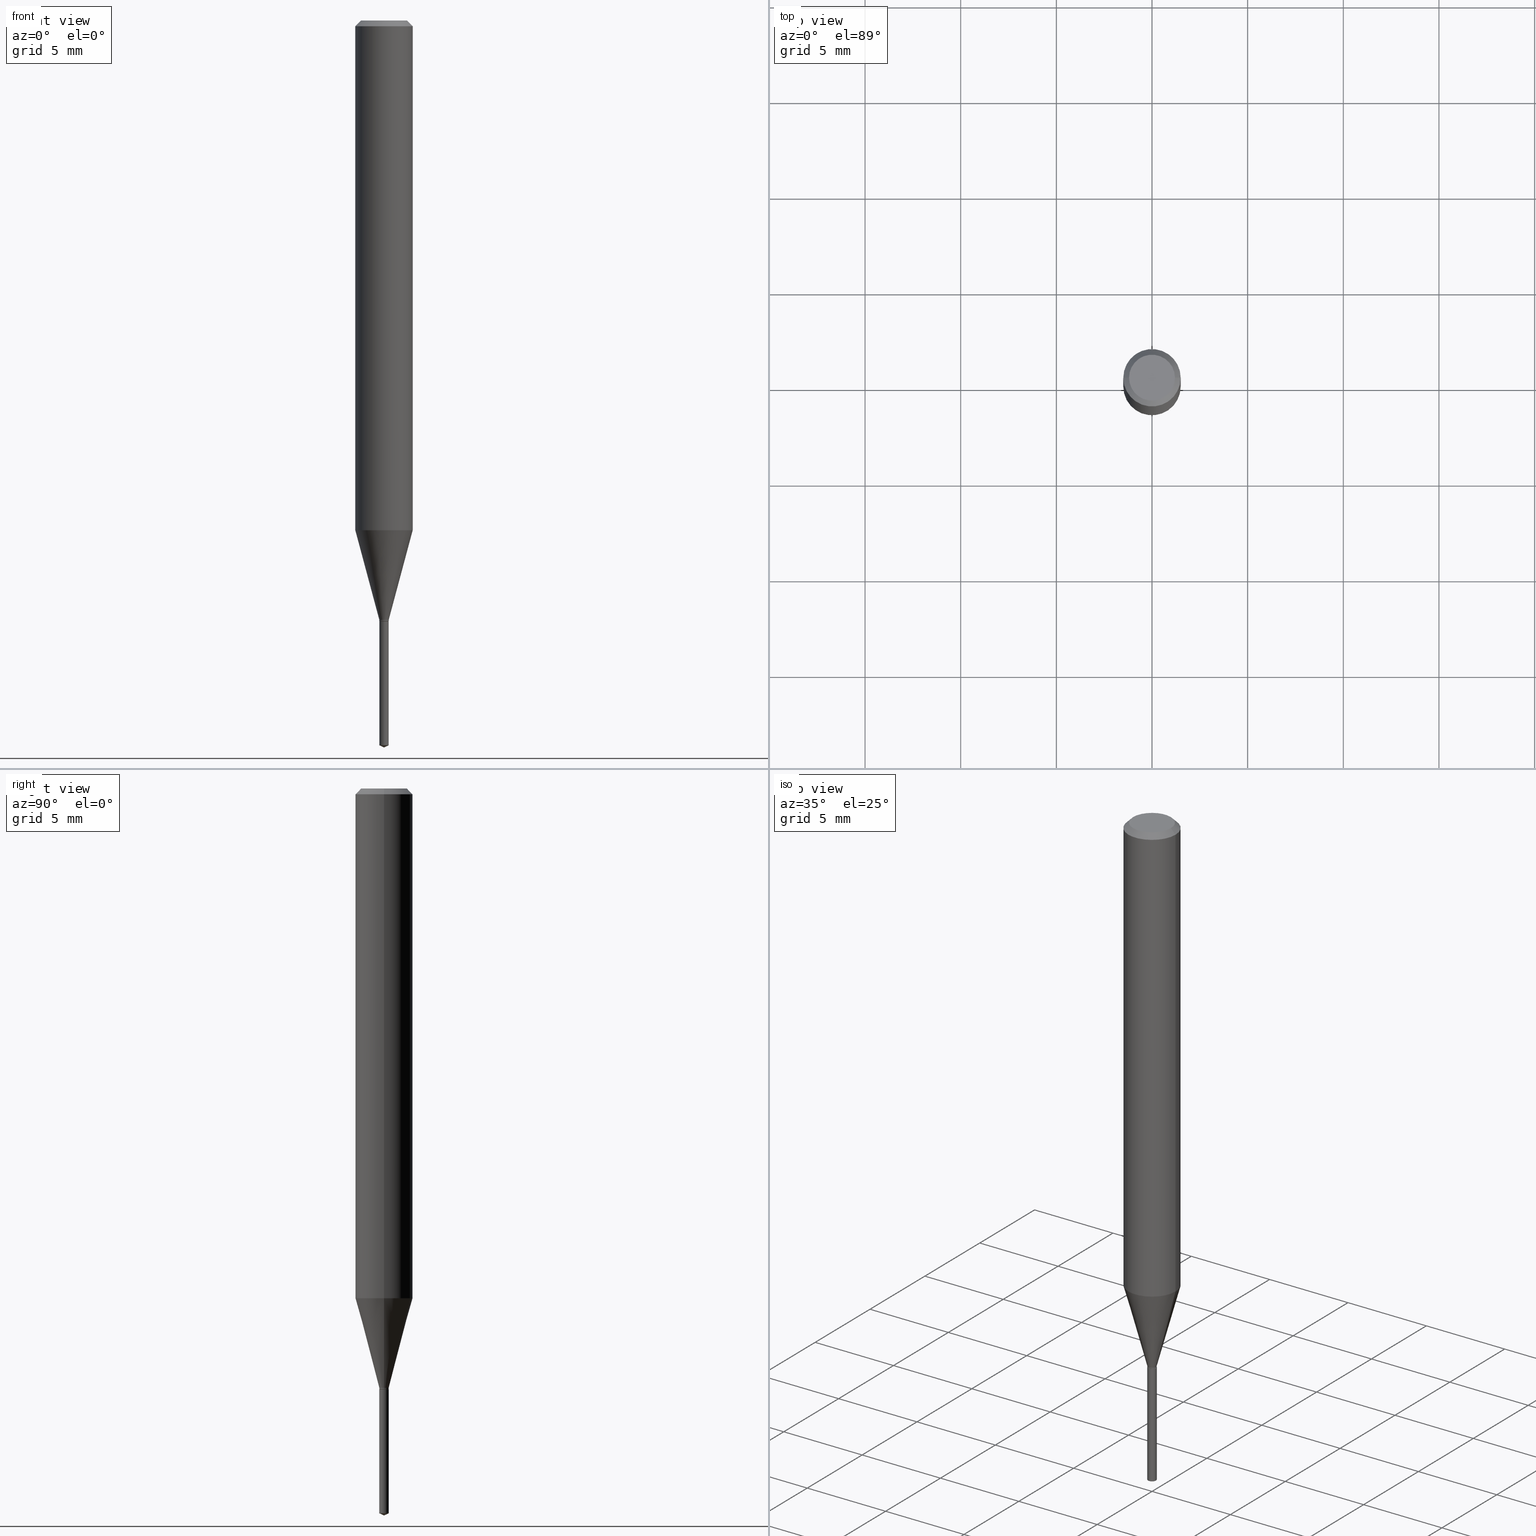
[diagram: canonical four-view strip — front | top / right | iso, engineering-drawing reading convention]
A machine part, canonical four-view strip (front | top / right | iso — engineering-drawing reading convention). The complete STEP part file that produces these views, byte-faithful:
ISO-10303-21;
HEADER;
FILE_DESCRIPTION (( 'STEP AP203' ),
    '1' );
FILE_NAME ('08273.STEP',
    '2024-04-24T14:02:32',
    ( '' ),
    ( '' ),
    'SwSTEP 2.0',
    'SolidWorks 2023',
    '' );
FILE_SCHEMA (( 'CONFIG_CONTROL_DESIGN' ));
ENDSEC;

DATA;
#1 = VERTEX_POINT ( 'NONE', #292 ) ;
#2 = CARTESIAN_POINT ( 'NONE',  ( 0.000000000000000000, 0.000000000000000000, 0.000000000000000000 ) ) ;
#3 = ORIENTED_EDGE ( 'NONE', *, *, #72, .F. ) ;
#4 = DIRECTION ( 'NONE',  ( -2.442788307079794989E-29, 3.495319966126529436E-15, 1.000000000000000000 ) ) ;
#5 = ORIENTED_EDGE ( 'NONE', *, *, #446, .T. ) ;
#6 = EDGE_CURVE ( 'NONE', #156, #190, #238, .T. ) ;
#7 = CARTESIAN_POINT ( 'NONE',  ( -9.251479850800149512E-28, 1.323864197820345943E-13, 37.87397874015748300 ) ) ;
#8 = ORIENTED_EDGE ( 'NONE', *, *, #35, .F. ) ;
#9 = DIRECTION ( 'NONE',  ( 1.000000000000000000, -6.982962677686287221E-15, 0.000000000000000000 ) ) ;
#10 = DIRECTION ( 'NONE',  ( -2.445468806185136597E-29, 3.491481338843145583E-15, 1.000000000000000000 ) ) ;
#11 = CONICAL_SURFACE ( 'NONE', #186, 0.05904999999999999832, 0.7853981633974452814 ) ;
#12 = CARTESIAN_POINT ( 'NONE',  ( 0.05904999999999999832, -4.463468013801466955E-16, -0.01181000000000007044 ) ) ;
#13 = AXIS2_PLACEMENT_3D ( 'NONE', #369, #183, #191 ) ;
#14 = DIRECTION ( 'NONE',  ( 1.000000000000000000, -6.982962677686237523E-15, 0.000000000000000000 ) ) ;
#15 = CARTESIAN_POINT ( 'NONE',  ( -0.05904999999999999832, -1.432387725473137872E-15, -0.01181000000000007044 ) ) ;
#16 = DIRECTION ( 'NONE',  ( 1.000000000000000000, 0.000000000000000000, 0.000000000000000000 ) ) ;
#17 = APPROVAL_STATUS ( 'not_yet_approved' ) ;
#18 = AXIS2_PLACEMENT_3D ( 'NONE', #322, #443, #178 ) ;
#19 = AXIS2_PLACEMENT_3D ( 'NONE', #90, #461, #422 ) ;
#20 = ADVANCED_FACE ( 'NONE', ( #439 ), #280, .T. ) ;
#21 = DATE_TIME_ROLE ( 'creation_date' ) ;
#22 = LINE ( 'NONE', #48, #232 ) ;
#23 = FACE_OUTER_BOUND ( 'NONE', #81, .T. ) ;
#24 = CARTESIAN_POINT ( 'NONE',  ( 8.265746106709734507E-48, -1.180129479067563789E-33, -3.380025165646692144E-19 ) ) ;
#25 = DIRECTION ( 'NONE',  ( 1.000000000000000000, -6.982962677686265133E-15, 0.000000000000000000 ) ) ;
#26 = EDGE_CURVE ( 'NONE', #109, #225, #207, .T. ) ;
#27 = VECTOR ( 'NONE', #128, 39.37007874015748143 ) ;
#28 = AXIS2_PLACEMENT_3D ( 'NONE', #390, #50, #200 ) ;
#29 = DIRECTION ( 'NONE',  ( 1.000000000000000000, -6.982962677686287221E-15, 0.000000000000000000 ) ) ;
#30 = PERSON ( 'UNSPECIFIED', 'UNSPECIFIED', 'UNSPECIFIED', ('UNSPECIFIED'), ('UNSPECIFIED'), ('UNSPECIFIED') ) ;
#31 = DIRECTION ( 'NONE',  ( -2.445468806185136597E-29, 3.491481338843145583E-15, 1.000000000000000000 ) ) ;
#32 = CYLINDRICAL_SURFACE ( 'NONE', #449, 0.009650000000000000591 ) ;
#33 = AXIS2_PLACEMENT_3D ( 'NONE', #51, #249, #199 ) ;
#34 = ORIENTED_EDGE ( 'NONE', *, *, #102, .T. ) ;
#35 = EDGE_CURVE ( 'NONE', #215, #74, #134, .T. ) ;
#36 = DIRECTION ( 'NONE',  ( 1.000000000000000000, -6.982962677686265133E-15, 4.876176775795935232E-29 ) ) ;
#37 = ORIENTED_EDGE ( 'NONE', *, *, #276, .T. ) ;
#38 = DIRECTION ( 'NONE',  ( -6.982962677686265133E-15, -1.000000000000000000, 0.000000000000000000 ) ) ;
#39 = ORIENTED_EDGE ( 'NONE', *, *, #490, .T. ) ;
#40 = DIRECTION ( 'NONE',  ( 1.000000000000000000, -6.982962677686232001E-15, 0.000000000000000000 ) ) ;
#41 = ORIENTED_EDGE ( 'NONE', *, *, #252, .T. ) ;
#42 = CC_DESIGN_APPROVAL ( #417, ( #333 ) ) ;
#43 = FACE_OUTER_BOUND ( 'NONE', #260, .T. ) ;
#44 = CC_DESIGN_SECURITY_CLASSIFICATION ( #242, ( #400 ) ) ;
#45 = ORIENTED_EDGE ( 'NONE', *, *, #317, .F. ) ;
#46 = APPLICATION_CONTEXT ( 'configuration controlled 3d designs of mechanical parts and assemblies' ) ;
#47 = DIRECTION ( 'NONE',  ( -2.445468806185136597E-29, 3.491481338843145583E-15, 1.000000000000000000 ) ) ;
#48 = CARTESIAN_POINT ( 'NONE',  ( -0.009650000000000000591, -4.237825709328286181E-15, -1.233400000000000052 ) ) ;
#49 = EDGE_CURVE ( 'NONE', #264, #109, #22, .T. ) ;
#50 = DIRECTION ( 'NONE',  ( -2.442788307079794989E-29, 3.495319966126529436E-15, 1.000000000000000000 ) ) ;
#51 = CARTESIAN_POINT ( 'NONE',  ( 2.565386502198165089E-29, -3.662692027267218578E-15, -1.049036690106097236 ) ) ;
#52 = MANIFOLD_SOLID_BREP ( 'Body-Move/Copy2[1]', #479 ) ;
#53 = AXIS2_PLACEMENT_3D ( 'NONE', #258, #489, #189 ) ;
#54 = FACE_OUTER_BOUND ( 'NONE', #192, .T. ) ;
#55 = VECTOR ( 'NONE', #73, 39.37007874015748854 ) ;
#56 = LOCAL_TIME ( 10, 2, 32.00000000000000000, #438 ) ;
#57 = DIRECTION ( 'NONE',  ( -2.445468806185136877E-29, 3.491481338843145188E-15, 1.000000000000000000 ) ) ;
#58 = APPROVAL_STATUS ( 'not_yet_approved' ) ;
#59 = ADVANCED_FACE ( 'NONE', ( #65 ), #263, .T. ) ;
#60 = VECTOR ( 'NONE', #467, 39.37007874015748854 ) ;
#61 = CIRCLE ( 'NONE', #480, 0.009650000000000000591 ) ;
#62 = CARTESIAN_POINT ( 'NONE',  ( 0.05905000000000006771, -4.123439461173745257E-16, 2.879382386107503723E-30 ) ) ;
#63 = COORDINATED_UNIVERSAL_TIME_OFFSET ( 5, 0, .BEHIND. ) ;
#64 = EDGE_CURVE ( 'NONE', #225, #109, #384, .T. ) ;
#65 = FACE_OUTER_BOUND ( 'NONE', #406, .T. ) ;
#66 = CARTESIAN_POINT ( 'NONE',  ( -0.009150000000000000147, -4.248854491715620599E-15, -1.236299999999999955 ) ) ;
#67 = CIRCLE ( 'NONE', #425, 0.009650000000000000591 ) ;
#68 = ORGANIZATION ( 'UNSPECIFIED', 'UNSPECIFIED', '' ) ;
#69 = EDGE_LOOP ( 'NONE', ( #380, #5, #85, #88 ) ) ;
#70 = DIRECTION ( 'NONE',  ( -2.442788307079794989E-29, 3.495319966126529436E-15, 1.000000000000000000 ) ) ;
#71 = DIRECTION ( 'NONE',  ( -2.442788307079794708E-29, 3.495319966126529831E-15, 1.000000000000000000 ) ) ;
#72 = EDGE_CURVE ( 'NONE', #190, #264, #67, .T. ) ;
#73 = DIRECTION ( 'NONE',  ( -6.328713451373434065E-15, -0.9063077870366579303, 0.4226182617406822328 ) ) ;
#74 = VERTEX_POINT ( 'NONE', #213 ) ;
#75 = VECTOR ( 'NONE', #383, 39.37007874015748143 ) ;
#76 = CC_DESIGN_APPROVAL ( #351, ( #400 ) ) ;
#77 = CARTESIAN_POINT ( 'NONE',  ( -0.04724000000000000421, 3.504923541997677355E-16, -3.380025165670481712E-19 ) ) ;
#78 = EDGE_LOOP ( 'NONE', ( #39, #345 ) ) ;
#79 = DIRECTION ( 'NONE',  ( 1.000000000000000000, -6.982962677686265922E-15, 4.876176775795935793E-29 ) ) ;
#80 = CC_DESIGN_PERSON_AND_ORGANIZATION_ASSIGNMENT ( #93, #434, ( #400 ) ) ;
#81 = EDGE_LOOP ( 'NONE', ( #142, #37, #118, #307 ) ) ;
#82 = DIRECTION ( 'NONE',  ( -2.445468806185136597E-29, 3.491481338843145583E-15, 1.000000000000000000 ) ) ;
#83 = EDGE_LOOP ( 'NONE', ( #150, #236, #114, #304 ) ) ;
#84 = CYLINDRICAL_SURFACE ( 'NONE', #139, 0.009650000000000000591 ) ;
#85 = ORIENTED_EDGE ( 'NONE', *, *, #317, .T. ) ;
#86 = EDGE_CURVE ( 'NONE', #309, #197, #123, .T. ) ;
#87 = DIRECTION ( 'NONE',  ( -6.982962677686265133E-15, -1.000000000000000000, 0.000000000000000000 ) ) ;
#88 = ORIENTED_EDGE ( 'NONE', *, *, #182, .F. ) ;
#89 = EDGE_CURVE ( 'NONE', #197, #302, #287, .T. ) ;
#90 = CARTESIAN_POINT ( 'NONE',  ( 3.023333085086683703E-29, -4.316518379211780118E-15, -1.236299999999999955 ) ) ;
#91 = ORIENTED_EDGE ( 'NONE', *, *, #453, .F. ) ;
#92 = VECTOR ( 'NONE', #221, 39.37007874015748143 ) ;
#93 = PERSON_AND_ORGANIZATION ( #30, #68 ) ;
#94 = AXIS2_PLACEMENT_3D ( 'NONE', #330, #217, #256 ) ;
#95 = DIRECTION ( 'NONE',  ( -2.445468806185136597E-29, 3.491481338843145583E-15, 1.000000000000000000 ) ) ;
#96 = EDGE_CURVE ( 'NONE', #190, #225, #241, .T. ) ;
#97 = PERSON_AND_ORGANIZATION ( #30, #68 ) ;
#98 = CARTESIAN_POINT ( 'NONE',  ( 0.000000000000000000, 0.000000000000000000, 0.000000000000000000 ) ) ;
#99 = VECTOR ( 'NONE', #57, 39.37007874015748143 ) ;
#100 = LINE ( 'NONE', #394, #409 ) ;
#101 = CIRCLE ( 'NONE', #334, 0.009650000000000000591 ) ;
#102 = EDGE_CURVE ( 'NONE', #109, #302, #100, .T. ) ;
#103 = DIRECTION ( 'NONE',  ( 1.000000000000000000, -6.982962677686266711E-15, 4.876185090822587894E-29 ) ) ;
#104 = DIRECTION ( 'NONE',  ( -2.445468806185136877E-29, 3.491481338843145188E-15, 1.000000000000000000 ) ) ;
#105 = ORIENTED_EDGE ( 'NONE', *, *, #268, .T. ) ;
#106 = CARTESIAN_POINT ( 'NONE',  ( 4.132873053354867254E-48, -5.900647395337818946E-34, -1.690012582823346072E-19 ) ) ;
#107 = AXIS2_PLACEMENT_3D ( 'NONE', #481, #391, #25 ) ;
#108 = LOCAL_TIME ( 10, 2, 32.00000000000000000, #63 ) ;
#109 = VERTEX_POINT ( 'NONE', #294 ) ;
#110 = DIRECTION ( 'NONE',  ( -2.442788307079794989E-29, 3.495319966126529436E-15, 1.000000000000000000 ) ) ;
#111 = FACE_OUTER_BOUND ( 'NONE', #78, .T. ) ;
#112 = EDGE_LOOP ( 'NONE', ( #228, #460, #405, #181 ) ) ;
#113 = DIRECTION ( 'NONE',  ( 1.000000000000000000, -6.982962677686266711E-15, 4.876176775795936353E-29 ) ) ;
#114 = ORIENTED_EDGE ( 'NONE', *, *, #152, .T. ) ;
#115 = AXIS2_PLACEMENT_3D ( 'NONE', #303, #151, #29 ) ;
#116 = ADVANCED_FACE ( 'NONE', ( #444 ), #11, .T. ) ;
#117 = CARTESIAN_POINT ( 'NONE',  ( 3.646977260130782939E-29, -5.208874024796151872E-15, -1.491600131098804516 ) ) ;
#118 = ORIENTED_EDGE ( 'NONE', *, *, #261, .F. ) ;
#119 = DIRECTION ( 'NONE',  ( -2.442788307079794989E-29, 3.495319966126529436E-15, 1.000000000000000000 ) ) ;
#120 = EDGE_LOOP ( 'NONE', ( #338, #358, #3, #272 ) ) ;
#121 = PLANE ( 'NONE',  #172 ) ;
#122 = ORIENTED_EDGE ( 'NONE', *, *, #261, .T. ) ;
#123 = CIRCLE ( 'NONE', #129, 0.04724000000000000421 ) ;
#124 = DIRECTION ( 'NONE',  ( 1.000000000000000000, -6.982962677686266711E-15, 0.000000000000000000 ) ) ;
#125 = EDGE_CURVE ( 'NONE', #225, #216, #403, .T. ) ;
#126 = DIRECTION ( 'NONE',  ( -1.000000000000000000, 6.982962677686266711E-15, 0.000000000000000000 ) ) ;
#127 = DIRECTION ( 'NONE',  ( -6.982962677686267499E-15, -1.000000000000000000, 3.520397390770263360E-15 ) ) ;
#128 = DIRECTION ( 'NONE',  ( -0.7071067811865453523, 2.468850131082234184E-15, -0.7071067811865496822 ) ) ;
#129 = AXIS2_PLACEMENT_3D ( 'NONE', #349, #10, #103 ) ;
#130 = APPROVAL_DATE_TIME ( #472, #417 ) ;
#131 = CONICAL_SURFACE ( 'NONE', #195, 84.42940631927891104, 1.134464013796336657 ) ;
#132 = PERSON_AND_ORGANIZATION ( #30, #68 ) ;
#133 = PERSON_AND_ORGANIZATION_ROLE ( 'classification_officer' ) ;
#134 = LINE ( 'NONE', #165, #60 ) ;
#135 = APPLICATION_CONTEXT ( 'configuration controlled 3d designs of mechanical parts and assemblies' ) ;
#136 = COORDINATED_UNIVERSAL_TIME_OFFSET ( 5, 0, .BEHIND. ) ;
#137 = AXIS2_PLACEMENT_3D ( 'NONE', #335, #31, #262 ) ;
#138 = VERTEX_POINT ( 'NONE', #360 ) ;
#139 = AXIS2_PLACEMENT_3D ( 'NONE', #237, #240, #229 ) ;
#140 = PERSON_AND_ORGANIZATION ( #30, #68 ) ;
#141 = DIRECTION ( 'NONE',  ( -2.445468806185136877E-29, 3.491481338843145188E-15, 1.000000000000000000 ) ) ;
#142 = ORIENTED_EDGE ( 'NONE', *, *, #313, .T. ) ;
#143 = CYLINDRICAL_SURFACE ( 'NONE', #484, 0.009650000000000000591 ) ;
#144 = LINE ( 'NONE', #223, #289 ) ;
#145 = AXIS2_PLACEMENT_3D ( 'NONE', #315, #362, #126 ) ;
#146 = CIRCLE ( 'NONE', #355, 0.009650000000000000591 ) ;
#147 = CALENDAR_DATE ( 2024, 24, 4 ) ;
#148 = CARTESIAN_POINT ( 'NONE',  ( 0.000000000000000000, 0.000000000000000000, 0.000000000000000000 ) ) ;
#149 = ADVANCED_FACE ( 'NONE', ( #23 ), #177, .T. ) ;
#150 = ORIENTED_EDGE ( 'NONE', *, *, #86, .F. ) ;
#151 = DIRECTION ( 'NONE',  ( -2.445468806185136597E-29, 3.491481338843145583E-15, 1.000000000000000000 ) ) ;
#152 = EDGE_CURVE ( 'NONE', #216, #302, #373, .T. ) ;
#153 = ORIENTED_EDGE ( 'NONE', *, *, #26, .T. ) ;
#154 = CARTESIAN_POINT ( 'NONE',  ( 0.05905000000000013016, -4.075035973384593498E-15, -1.049036690106097236 ) ) ;
#155 = CLOSED_SHELL ( 'NONE', ( #486, #20, #164, #59, #284, #204, #399, #293, #116, #239, #427, #370 ) ) ;
#156 = VERTEX_POINT ( 'NONE', #418 ) ;
#157 = CIRCLE ( 'NONE', #94, 0.009650000000000000591 ) ;
#158 = CARTESIAN_POINT ( 'NONE',  ( 6.856737400088618161E-17, 0.009649999999995684599, -1.236299999999999955 ) ) ;
#159 = VERTEX_POINT ( 'NONE', #482 ) ;
#160 = CARTESIAN_POINT ( 'NONE',  ( -6.738558983963601813E-17, -0.009650000000005213435, -1.491600131098804516 ) ) ;
#161 = PRODUCT_DEFINITION_SHAPE ( 'NONE', 'NONE',  #333 ) ;
#162 = ORIENTED_EDGE ( 'NONE', *, *, #404, .T. ) ;
#163 = FACE_OUTER_BOUND ( 'NONE', #462, .T. ) ;
#164 = ADVANCED_FACE ( 'NONE', ( #415 ), #483, .T. ) ;
#165 = CARTESIAN_POINT ( 'NONE',  ( 3.661341506310766825E-29, -5.219856811501005249E-15, -1.496099999999999985 ) ) ;
#166 = AXIS2_PLACEMENT_3D ( 'NONE', #381, #235, #312 ) ;
#167 = DIRECTION ( 'NONE',  ( 0.7071067811865453523, -7.319954787623248157E-15, -0.7071067811865496822 ) ) ;
#168 = ORIENTED_EDGE ( 'NONE', *, *, #246, .T. ) ;
#169 = DIRECTION ( 'NONE',  ( -0.7071067811866191821, 7.493145998870612907E-15, 0.7071067811864758523 ) ) ;
#170 = CC_DESIGN_DATE_AND_TIME_ASSIGNMENT ( #488, #220, ( #242 ) ) ;
#171 = APPROVAL_DATE_TIME ( #361, #351 ) ;
#172 = AXIS2_PLACEMENT_3D ( 'NONE', #270, #420, #79 ) ;
#173 = LOCAL_TIME ( 10, 2, 32.00000000000000000, #279 ) ;
#174 = ADVANCED_FACE ( 'NONE', ( #337 ), #185, .F. ) ;
#175 = DIRECTION ( 'NONE',  ( -0.2588190451025211281, 5.211531920934547886E-15, 0.9659258262890679791 ) ) ;
#176 = EDGE_CURVE ( 'NONE', #138, #264, #455, .T. ) ;
#177 = CYLINDRICAL_SURFACE ( 'NONE', #314, 0.009650000000000000591 ) ;
#178 = DIRECTION ( 'NONE',  ( 1.000000000000000000, -6.982962677686237523E-15, 0.000000000000000000 ) ) ;
#179 = AXIS2_PLACEMENT_3D ( 'NONE', #106, #485, #180 ) ;
#180 = DIRECTION ( 'NONE',  ( -1.000000000000000000, 6.982962677686265922E-15, -4.876176775795935793E-29 ) ) ;
#181 = ORIENTED_EDGE ( 'NONE', *, *, #395, .T. ) ;
#182 = EDGE_CURVE ( 'NONE', #138, #156, #363, .T. ) ;
#183 = DIRECTION ( 'NONE',  ( -2.442788307079794989E-29, 3.495319966126529436E-15, 1.000000000000000000 ) ) ;
#184 = APPROVAL_STATUS ( 'not_yet_approved' ) ;
#185 = PLANE ( 'NONE',  #53 ) ;
#186 = AXIS2_PLACEMENT_3D ( 'NONE', #278, #432, #205 ) ;
#187 = AXIS2_PLACEMENT_3D ( 'NONE', #429, #465, #40 ) ;
#188 = ORIENTED_EDGE ( 'NONE', *, *, #182, .T. ) ;
#189 = DIRECTION ( 'NONE',  ( 6.982962677686265922E-15, 1.000000000000000000, -3.495319966126529831E-15 ) ) ;
#190 = VERTEX_POINT ( 'NONE', #254 ) ;
#191 = DIRECTION ( 'NONE',  ( -6.982962677686265133E-15, -1.000000000000000000, 0.000000000000000000 ) ) ;
#192 = EDGE_LOOP ( 'NONE', ( #476, #233, #329 ) ) ;
#193 = CARTESIAN_POINT ( 'NONE',  ( 3.646977260130782939E-29, -5.208874024796151872E-15, -1.491600131098804516 ) ) ;
#194 = ORIENTED_EDGE ( 'NONE', *, *, #276, .F. ) ;
#195 = AXIS2_PLACEMENT_3D ( 'NONE', #7, #4, #127 ) ;
#196 = DIRECTION ( 'NONE',  ( 1.000000000000000000, -6.982962677686266711E-15, 4.876176775795936353E-29 ) ) ;
#197 = VERTEX_POINT ( 'NONE', #77 ) ;
#198 = CARTESIAN_POINT ( 'NONE',  ( 0.009150000000000000147, -4.380412487712609515E-15, -1.236299999999999955 ) ) ;
#199 = DIRECTION ( 'NONE',  ( 1.000000000000000000, -6.982962677686265133E-15, 0.000000000000000000 ) ) ;
#200 = DIRECTION ( 'NONE',  ( -6.982962677686267499E-15, -1.000000000000000000, 3.520397390770263360E-15 ) ) ;
#201 = DIRECTION ( 'NONE',  ( -2.445468806185136597E-29, 3.491481338843145583E-15, 1.000000000000000000 ) ) ;
#202 = CIRCLE ( 'NONE', #466, 0.05904999999999999832 ) ;
#203 = FACE_OUTER_BOUND ( 'NONE', #69, .T. ) ;
#204 = ADVANCED_FACE ( 'NONE', ( #227 ), #143, .T. ) ;
#205 = DIRECTION ( 'NONE',  ( -1.000000000000000000, 6.982962677686266711E-15, 0.000000000000000000 ) ) ;
#206 = MECHANICAL_CONTEXT ( 'NONE', #46, 'mechanical' ) ;
#207 = CIRCLE ( 'NONE', #107, 0.05905000000000013016 ) ;
#208 = DIRECTION ( 'NONE',  ( -2.445468806185136597E-29, 3.491481338843145583E-15, 1.000000000000000000 ) ) ;
#209 = CONICAL_SURFACE ( 'NONE', #28, 84.42940631927891104, 1.134464013796336657 ) ;
#210 = MANIFOLD_SOLID_BREP ( 'Body-Move/Copy2[2]', #155 ) ;
#211 = CC_DESIGN_PERSON_AND_ORGANIZATION_ASSIGNMENT ( #132, #245, ( #400 ) ) ;
#212 = APPLICATION_PROTOCOL_DEFINITION ( 'international standard', 'config_control_design', 1994, #46 ) ;
#213 = CARTESIAN_POINT ( 'NONE',  ( 6.856737400088615695E-17, 0.009649999999994794686, -1.491600131098804516 ) ) ;
#214 = CALENDAR_DATE ( 2024, 24, 4 ) ;
#215 = VERTEX_POINT ( 'NONE', #296 ) ;
#216 = VERTEX_POINT ( 'NONE', #412 ) ;
#217 = DIRECTION ( 'NONE',  ( -2.445468806185136597E-29, 3.491481338843145583E-15, 1.000000000000000000 ) ) ;
#218 = EDGE_CURVE ( 'NONE', #377, #1, #441, .T. ) ;
#219 = ORIENTED_EDGE ( 'NONE', *, *, #340, .F. ) ;
#220 = DATE_TIME_ROLE ( 'classification_date' ) ;
#221 = DIRECTION ( 'NONE',  ( -2.445468806185136877E-29, 3.491481338843145188E-15, 1.000000000000000000 ) ) ;
#222 = DIRECTION ( 'NONE',  ( -2.445468806185136597E-29, 3.491481338843145583E-15, 1.000000000000000000 ) ) ;
#223 = CARTESIAN_POINT ( 'NONE',  ( -6.738558983964223041E-17, -0.009650000000004314848, -1.236299999999999955 ) ) ;
#224 = VECTOR ( 'NONE', #169, 39.37007874015748143 ) ;
#225 = VERTEX_POINT ( 'NONE', #154 ) ;
#226 = PRODUCT_RELATED_PRODUCT_CATEGORY ( 'detail', '', ( #273 ) ) ;
#227 = FACE_OUTER_BOUND ( 'NONE', #464, .T. ) ;
#228 = ORIENTED_EDGE ( 'NONE', *, *, #475, .F. ) ;
#229 = DIRECTION ( 'NONE',  ( -6.982962677686265133E-15, -1.000000000000000000, 0.000000000000000000 ) ) ;
#230 = ORIENTED_EDGE ( 'NONE', *, *, #125, .T. ) ;
#231 = CARTESIAN_POINT ( 'NONE',  ( -0.009150000000000000147, -4.251503718889731012E-15, -1.236299999999999955 ) ) ;
#232 = VECTOR ( 'NONE', #175, 39.37007874015748854 ) ;
#233 = ORIENTED_EDGE ( 'NONE', *, *, #35, .T. ) ;
#234 = AXIS2_PLACEMENT_3D ( 'NONE', #193, #119, #346 ) ;
#235 = DIRECTION ( 'NONE',  ( -2.445468806185136597E-29, 3.491481338843145583E-15, 1.000000000000000000 ) ) ;
#236 = ORIENTED_EDGE ( 'NONE', *, *, #475, .T. ) ;
#237 = CARTESIAN_POINT ( 'NONE',  ( 3.023333085086683703E-29, -4.316518379211780118E-15, -1.236299999999999955 ) ) ;
#238 = LINE ( 'NONE', #430, #99 ) ;
#239 = ADVANCED_FACE ( 'NONE', ( #111 ), #305, .F. ) ;
#240 = DIRECTION ( 'NONE',  ( -2.442788307079794989E-29, 3.495319966126529436E-15, 1.000000000000000000 ) ) ;
#241 = LINE ( 'NONE', #324, #343 ) ;
#242 = SECURITY_CLASSIFICATION ( '', '', #397 ) ;
#243 = DIRECTION ( 'NONE',  ( 1.000000000000000000, -6.982962677686232001E-15, 0.000000000000000000 ) ) ;
#244 = DIRECTION ( 'NONE',  ( 0.000000000000000000, 0.000000000000000000, 1.000000000000000000 ) ) ;
#245 = PERSON_AND_ORGANIZATION_ROLE ( 'design_supplier' ) ;
#246 = EDGE_CURVE ( 'NONE', #215, #421, #407, .T. ) ;
#247 = AXIS2_PLACEMENT_3D ( 'NONE', #24, #95, #250 ) ;
#248 = CALENDAR_DATE ( 2024, 24, 4 ) ;
#249 = DIRECTION ( 'NONE',  ( -2.445468806185136597E-29, 3.491481338843145583E-15, 1.000000000000000000 ) ) ;
#250 = DIRECTION ( 'NONE',  ( 1.000000000000000000, -6.982962677686266711E-15, 4.876185090822587894E-29 ) ) ;
#251 = VERTEX_POINT ( 'NONE', #66 ) ;
#252 = EDGE_CURVE ( 'NONE', #264, #190, #157, .T. ) ;
#253 = ADVANCED_BREP_SHAPE_REPRESENTATION ( '08273', ( #52, #210, #321 ), #271 ) ;
#254 = CARTESIAN_POINT ( 'NONE',  ( 0.009650000000000000591, -4.373778673168807802E-15, -1.233400000000000052 ) ) ;
#255 = ORIENTED_EDGE ( 'NONE', *, *, #340, .T. ) ;
#256 = DIRECTION ( 'NONE',  ( 1.000000000000000000, -6.982962677686237523E-15, 0.000000000000000000 ) ) ;
#257 = ORIENTED_EDGE ( 'NONE', *, *, #395, .F. ) ;
#258 = CARTESIAN_POINT ( 'NONE',  ( 3.023333085086683703E-29, -4.316518379211780118E-15, -1.236299999999999955 ) ) ;
#259 = CARTESIAN_POINT ( 'NONE',  ( 3.654655586222080209E-29, -5.229348201321899733E-15, -1.496099999999999985 ) ) ;
#260 = EDGE_LOOP ( 'NONE', ( #347, #153, #230, #257 ) ) ;
#261 = EDGE_CURVE ( 'NONE', #1, #377, #101, .T. ) ;
#262 = DIRECTION ( 'NONE',  ( 1.000000000000000000, -6.982962677686266711E-15, 0.000000000000000000 ) ) ;
#263 = CONICAL_SURFACE ( 'NONE', #18, 0.009650000000000000591, 0.2617993877991498519 ) ;
#264 = VERTEX_POINT ( 'NONE', #332 ) ;
#265 = FACE_OUTER_BOUND ( 'NONE', #341, .T. ) ;
#266 = ORIENTED_EDGE ( 'NONE', *, *, #96, .F. ) ;
#267 = FACE_OUTER_BOUND ( 'NONE', #336, .T. ) ;
#268 = EDGE_CURVE ( 'NONE', #421, #1, #144, .T. ) ;
#269 = EDGE_LOOP ( 'NONE', ( #275, #34, #382, #428 ) ) ;
#270 = CARTESIAN_POINT ( 'NONE',  ( 3.023333085086683703E-29, -4.316518379211780118E-15, -1.236299999999999955 ) ) ;
#271 =( GEOMETRIC_REPRESENTATION_CONTEXT ( 3 ) GLOBAL_UNCERTAINTY_ASSIGNED_CONTEXT ( ( #286 ) ) GLOBAL_UNIT_ASSIGNED_CONTEXT ( ( #282, #283, #401 ) ) REPRESENTATION_CONTEXT ( 'NONE', 'WORKASPACE' ) );
#272 = ORIENTED_EDGE ( 'NONE', *, *, #6, .F. ) ;
#273 = PRODUCT ( '08273', '08273', '', ( #206 ) ) ;
#274 = DIRECTION ( 'NONE',  ( 1.000000000000000000, -6.982962677686237523E-15, 0.000000000000000000 ) ) ;
#275 = ORIENTED_EDGE ( 'NONE', *, *, #64, .T. ) ;
#276 = EDGE_CURVE ( 'NONE', #74, #377, #298, .T. ) ;
#277 = CARTESIAN_POINT ( 'NONE',  ( 2.888098660104663766E-31, -4.123439461173779647E-17, -0.01181000000000007044 ) ) ;
#278 = CARTESIAN_POINT ( 'NONE',  ( 2.888098660104663766E-31, -4.123439461173779647E-17, -0.01181000000000007044 ) ) ;
#279 = COORDINATED_UNIVERSAL_TIME_OFFSET ( 5, 0, .BEHIND. ) ;
#280 = CONICAL_SURFACE ( 'NONE', #145, 0.05904999999999999832, 0.7853981633974452814 ) ;
#281 = AXIS2_PLACEMENT_3D ( 'NONE', #463, #353, #196 ) ;
#282 =( CONVERSION_BASED_UNIT ( 'INCH', #323 ) LENGTH_UNIT ( ) NAMED_UNIT ( #452 ) );
#283 =( NAMED_UNIT ( * ) PLANE_ANGLE_UNIT ( ) SI_UNIT ( $, .RADIAN. ) );
#284 = ADVANCED_FACE ( 'NONE', ( #372 ), #32, .T. ) ;
#285 =( LENGTH_UNIT ( ) NAMED_UNIT ( * ) SI_UNIT ( $, .METRE. ) );
#286 = UNCERTAINTY_MEASURE_WITH_UNIT (LENGTH_MEASURE( 1.000000000000000082E-05 ), #282, 'distance_accuracy_value', 'NONE');
#287 = LINE ( 'NONE', #318, #27 ) ;
#288 = VECTOR ( 'NONE', #104, 39.37007874015748143 ) ;
#289 = VECTOR ( 'NONE', #375, 39.37007874015748143 ) ;
#290 = DATE_AND_TIME ( #357, #108 ) ;
#291 = LOCAL_TIME ( 10, 2, 32.00000000000000000, #371 ) ;
#292 = CARTESIAN_POINT ( 'NONE',  ( -6.738558983964223041E-17, -0.009650000000004314848, -1.236299999999999955 ) ) ;
#293 = ADVANCED_FACE ( 'NONE', ( #43 ), #310, .T. ) ;
#294 = CARTESIAN_POINT ( 'NONE',  ( -0.05905000000000013016, -3.243116541800878691E-15, -1.049036690106097236 ) ) ;
#295 = ORIENTED_EDGE ( 'NONE', *, *, #446, .F. ) ;
#296 = CARTESIAN_POINT ( 'NONE',  ( 3.654655586222080209E-29, -5.229348201321900522E-15, -1.496099999999999985 ) ) ;
#297 = EDGE_LOOP ( 'NONE', ( #122, #331 ) ) ;
#298 = LINE ( 'NONE', #414, #326 ) ;
#299 = CONICAL_SURFACE ( 'NONE', #364, 0.009150000000000000147, 0.7853981633975496424 ) ;
#300 = DIRECTION ( 'NONE',  ( -2.445468806185136597E-29, 3.491481338843145583E-15, 1.000000000000000000 ) ) ;
#301 = CC_DESIGN_PERSON_AND_ORGANIZATION_ASSIGNMENT ( #474, #133, ( #242 ) ) ;
#302 = VERTEX_POINT ( 'NONE', #15 ) ;
#303 = CARTESIAN_POINT ( 'NONE',  ( 3.022110350683592022E-29, -4.314772638542359403E-15, -1.235800000000000010 ) ) ;
#304 = ORIENTED_EDGE ( 'NONE', *, *, #89, .F. ) ;
#305 = PLANE ( 'NONE',  #179 ) ;
#306 = CIRCLE ( 'NONE', #234, 0.009650000000000000591 ) ;
#307 = ORIENTED_EDGE ( 'NONE', *, *, #268, .F. ) ;
#308 = DIRECTION ( 'NONE',  ( -2.445468806185136597E-29, 3.491481338843145583E-15, 1.000000000000000000 ) ) ;
#309 = VERTEX_POINT ( 'NONE', #392 ) ;
#310 = CYLINDRICAL_SURFACE ( 'NONE', #281, 0.05905000000000006771 ) ;
#311 = EDGE_LOOP ( 'NONE', ( #194, #487, #105, #456 ) ) ;
#312 = DIRECTION ( 'NONE',  ( 1.000000000000000000, -6.982962677686232001E-15, 0.000000000000000000 ) ) ;
#313 = EDGE_CURVE ( 'NONE', #421, #74, #61, .T. ) ;
#314 = AXIS2_PLACEMENT_3D ( 'NONE', #451, #110, #38 ) ;
#315 = CARTESIAN_POINT ( 'NONE',  ( 2.888098660104663766E-31, -4.123439461173779647E-17, -0.01181000000000007044 ) ) ;
#316 = DIRECTION ( 'NONE',  ( -2.442788307079794989E-29, 3.495319966126529436E-15, 1.000000000000000000 ) ) ;
#317 = EDGE_CURVE ( 'NONE', #159, #156, #342, .T. ) ;
#318 = CARTESIAN_POINT ( 'NONE',  ( -0.05904999999999999832, 3.711095515056362547E-16, -0.01181000000000007044 ) ) ;
#319 = LINE ( 'NONE', #231, #224 ) ;
#320 = APPROVAL_ROLE ( '' ) ;
#321 = AXIS2_PLACEMENT_3D ( 'NONE', #98, #244, #16 ) ;
#322 = CARTESIAN_POINT ( 'NONE',  ( 3.016241225548747360E-29, -4.306393083329135397E-15, -1.233400000000000052 ) ) ;
#323 = LENGTH_MEASURE_WITH_UNIT ( LENGTH_MEASURE( 0.02539999999999999897 ), #285 );
#324 = CARTESIAN_POINT ( 'NONE',  ( 0.009650000000000000591, -4.373778673168807802E-15, -1.233400000000000052 ) ) ;
#325 = EDGE_CURVE ( 'NONE', #74, #421, #306, .T. ) ;
#326 = VECTOR ( 'NONE', #71, 39.37007874015748143 ) ;
#327 = APPROVAL_ROLE ( '' ) ;
#328 = CARTESIAN_POINT ( 'NONE',  ( 3.016241225548747360E-29, -4.306393083329135397E-15, -1.233400000000000052 ) ) ;
#329 = ORIENTED_EDGE ( 'NONE', *, *, #313, .F. ) ;
#330 = CARTESIAN_POINT ( 'NONE',  ( 3.016241225548747360E-29, -4.306393083329135397E-15, -1.233400000000000052 ) ) ;
#331 = ORIENTED_EDGE ( 'NONE', *, *, #218, .T. ) ;
#332 = CARTESIAN_POINT ( 'NONE',  ( -0.009650000000000000591, -4.242015486934897790E-15, -1.233400000000000052 ) ) ;
#333 = PRODUCT_DEFINITION ( 'UNKNOWN', '', #400, #402 ) ;
#334 = AXIS2_PLACEMENT_3D ( 'NONE', #450, #70, #366 ) ;
#335 = CARTESIAN_POINT ( 'NONE',  ( 2.888098660104663766E-31, -4.123439461173779647E-17, -0.01181000000000007044 ) ) ;
#336 = EDGE_LOOP ( 'NONE', ( #408, #41, #416, #352 ) ) ;
#337 = FACE_OUTER_BOUND ( 'NONE', #297, .T. ) ;
#338 = ORIENTED_EDGE ( 'NONE', *, *, #453, .T. ) ;
#339 = CARTESIAN_POINT ( 'NONE',  ( -0.009650000000000000591, 6.856737400084967214E-17, -4.746772362095984141E-31 ) ) ;
#340 = EDGE_CURVE ( 'NONE', #159, #251, #398, .T. ) ;
#341 = EDGE_LOOP ( 'NONE', ( #219, #295 ) ) ;
#342 = LINE ( 'NONE', #198, #75 ) ;
#343 = VECTOR ( 'NONE', #478, 39.37007874015748854 ) ;
#344 = APPROVAL_PERSON_ORGANIZATION ( #477, #417, #320 ) ;
#345 = ORIENTED_EDGE ( 'NONE', *, *, #86, .T. ) ;
#346 = DIRECTION ( 'NONE',  ( -6.982962677686265133E-15, -1.000000000000000000, 0.000000000000000000 ) ) ;
#347 = ORIENTED_EDGE ( 'NONE', *, *, #102, .F. ) ;
#348 = CARTESIAN_POINT ( 'NONE',  ( 3.016241225548747360E-29, -4.306393083329135397E-15, -1.233400000000000052 ) ) ;
#349 = CARTESIAN_POINT ( 'NONE',  ( 8.265746106709734507E-48, -1.180129479067563789E-33, -3.380025165646692144E-19 ) ) ;
#350 = LINE ( 'NONE', #12, #473 ) ;
#351 = APPROVAL ( #17, 'UNSPECIFIED' ) ;
#352 = ORIENTED_EDGE ( 'NONE', *, *, #26, .F. ) ;
#353 = DIRECTION ( 'NONE',  ( -2.445468806185136597E-29, 3.491481338843145583E-15, 1.000000000000000000 ) ) ;
#354 = PERSON_AND_ORGANIZATION ( #30, #68 ) ;
#355 = AXIS2_PLACEMENT_3D ( 'NONE', #387, #47, #9 ) ;
#356 = APPROVAL_PERSON_ORGANIZATION ( #140, #413, #327 ) ;
#357 = CALENDAR_DATE ( 2024, 24, 4 ) ;
#358 = ORIENTED_EDGE ( 'NONE', *, *, #176, .T. ) ;
#359 = APPLICATION_PROTOCOL_DEFINITION ( 'international standard', 'config_control_design', 1994, #135 ) ;
#360 = CARTESIAN_POINT ( 'NONE',  ( -0.009650000000000000591, -4.242015486934897790E-15, -1.235800000000000010 ) ) ;
#361 = DATE_AND_TIME ( #214, #173 ) ;
#362 = DIRECTION ( 'NONE',  ( 2.445468806185136597E-29, -3.491481338843145583E-15, -1.000000000000000000 ) ) ;
#363 = CIRCLE ( 'NONE', #115, 0.009650000000000000591 ) ;
#364 = AXIS2_PLACEMENT_3D ( 'NONE', #431, #208, #243 ) ;
#365 = SHAPE_DEFINITION_REPRESENTATION ( #161, #253 ) ;
#366 = DIRECTION ( 'NONE',  ( -6.982962677686265133E-15, -1.000000000000000000, 0.000000000000000000 ) ) ;
#367 = ORIENTED_EDGE ( 'NONE', *, *, #49, .T. ) ;
#368 = DATE_AND_TIME ( #147, #291 ) ;
#369 = CARTESIAN_POINT ( 'NONE',  ( 3.023333085086683703E-29, -4.316518379211780118E-15, -1.236299999999999955 ) ) ;
#370 = ADVANCED_FACE ( 'NONE', ( #203 ), #374, .T. ) ;
#371 = COORDINATED_UNIVERSAL_TIME_OFFSET ( 5, 0, .BEHIND. ) ;
#372 = FACE_OUTER_BOUND ( 'NONE', #120, .T. ) ;
#373 = CIRCLE ( 'NONE', #137, 0.05904999999999999832 ) ;
#374 = CONICAL_SURFACE ( 'NONE', #19, 0.009150000000000000147, 0.7853981633975496424 ) ;
#375 = DIRECTION ( 'NONE',  ( -2.442788307079794708E-29, 3.495319966126529831E-15, 1.000000000000000000 ) ) ;
#376 = APPROVAL_PERSON_ORGANIZATION ( #354, #351, #435 ) ;
#377 = VERTEX_POINT ( 'NONE', #158 ) ;
#378 = CARTESIAN_POINT ( 'NONE',  ( 0.000000000000000000, 0.000000000000000000, 0.000000000000000000 ) ) ;
#379 = ADVANCED_FACE ( 'NONE', ( #54 ), #131, .T. ) ;
#380 = ORIENTED_EDGE ( 'NONE', *, *, #404, .F. ) ;
#381 = CARTESIAN_POINT ( 'NONE',  ( 3.023333085086683703E-29, -4.316518379211780118E-15, -1.236299999999999955 ) ) ;
#382 = ORIENTED_EDGE ( 'NONE', *, *, #152, .F. ) ;
#383 = DIRECTION ( 'NONE',  ( 0.7071067811866191821, -2.468850131083007662E-15, 0.7071067811864758523 ) ) ;
#384 = CIRCLE ( 'NONE', #33, 0.05905000000000013016 ) ;
#385 = CONICAL_SURFACE ( 'NONE', #393, 0.009650000000000000591, 0.2617993877991498519 ) ;
#386 = ORIENTED_EDGE ( 'NONE', *, *, #325, .F. ) ;
#387 = CARTESIAN_POINT ( 'NONE',  ( 3.022110350683592022E-29, -4.314772638542359403E-15, -1.235800000000000010 ) ) ;
#388 = EDGE_LOOP ( 'NONE', ( #255, #162, #91, #45 ) ) ;
#389 = CC_DESIGN_PERSON_AND_ORGANIZATION_ASSIGNMENT ( #97, #471, ( #333 ) ) ;
#390 = CARTESIAN_POINT ( 'NONE',  ( -9.251479850800149512E-28, 1.323864197820345943E-13, 37.87397874015748300 ) ) ;
#391 = DIRECTION ( 'NONE',  ( -2.445468806185136597E-29, 3.491481338843145583E-15, 1.000000000000000000 ) ) ;
#392 = CARTESIAN_POINT ( 'NONE',  ( 0.04724000000000000421, -3.852183633974369345E-16, -3.380025165621689721E-19 ) ) ;
#393 = AXIS2_PLACEMENT_3D ( 'NONE', #348, #82, #274 ) ;
#394 = CARTESIAN_POINT ( 'NONE',  ( -0.05905000000000006771, 4.195754854663396409E-16, -2.904631170795525045E-30 ) ) ;
#395 = EDGE_CURVE ( 'NONE', #302, #216, #202, .T. ) ;
#396 = PERSON_AND_ORGANIZATION_ROLE ( 'design_owner' ) ;
#397 = SECURITY_CLASSIFICATION_LEVEL ( 'unclassified' ) ;
#398 = CIRCLE ( 'NONE', #187, 0.009150000000000000147 ) ;
#399 = ADVANCED_FACE ( 'NONE', ( #267 ), #385, .T. ) ;
#400 = PRODUCT_DEFINITION_FORMATION_WITH_SPECIFIED_SOURCE ( 'ANY', '', #273, .NOT_KNOWN. ) ;
#401 =( NAMED_UNIT ( * ) SI_UNIT ( $, .STERADIAN. ) SOLID_ANGLE_UNIT ( ) );
#402 = DESIGN_CONTEXT ( 'detailed design', #135, 'design' ) ;
#403 = LINE ( 'NONE', #62, #288 ) ;
#404 = EDGE_CURVE ( 'NONE', #251, #138, #319, .T. ) ;
#405 = ORIENTED_EDGE ( 'NONE', *, *, #89, .T. ) ;
#406 = EDGE_LOOP ( 'NONE', ( #423, #367, #448, #266 ) ) ;
#407 = LINE ( 'NONE', #259, #55 ) ;
#408 = ORIENTED_EDGE ( 'NONE', *, *, #49, .F. ) ;
#409 = VECTOR ( 'NONE', #141, 39.37007874015748143 ) ;
#410 = LOCAL_TIME ( 10, 2, 32.00000000000000000, #136 ) ;
#411 = CC_DESIGN_APPROVAL ( #413, ( #242 ) ) ;
#412 = CARTESIAN_POINT ( 'NONE',  ( 0.05904999999999999832, -4.535783407291118600E-16, -0.01181000000000007044 ) ) ;
#413 = APPROVAL ( #184, 'UNSPECIFIED' ) ;
#414 = CARTESIAN_POINT ( 'NONE',  ( 6.856737400087989537E-17, 0.009649999999995684599, -1.236299999999999955 ) ) ;
#415 = FACE_OUTER_BOUND ( 'NONE', #269, .T. ) ;
#416 = ORIENTED_EDGE ( 'NONE', *, *, #96, .T. ) ;
#417 = APPROVAL ( #58, 'UNSPECIFIED' ) ;
#418 = CARTESIAN_POINT ( 'NONE',  ( 0.009650000000000000591, -4.382158228382031808E-15, -1.235800000000000010 ) ) ;
#419 = ORIENTED_EDGE ( 'NONE', *, *, #176, .F. ) ;
#420 = DIRECTION ( 'NONE',  ( -2.438088387897960049E-29, 3.491481338843145188E-15, 1.000000000000000000 ) ) ;
#421 = VERTEX_POINT ( 'NONE', #160 ) ;
#422 = DIRECTION ( 'NONE',  ( 1.000000000000000000, -6.982962677686232001E-15, 0.000000000000000000 ) ) ;
#423 = ORIENTED_EDGE ( 'NONE', *, *, #72, .T. ) ;
#424 = FACE_OUTER_BOUND ( 'NONE', #311, .T. ) ;
#425 = AXIS2_PLACEMENT_3D ( 'NONE', #328, #201, #14 ) ;
#426 = CIRCLE ( 'NONE', #247, 0.04724000000000000421 ) ;
#427 = ADVANCED_FACE ( 'NONE', ( #265 ), #121, .F. ) ;
#428 = ORIENTED_EDGE ( 'NONE', *, *, #125, .F. ) ;
#429 = CARTESIAN_POINT ( 'NONE',  ( 3.023333085086683703E-29, -4.316518379211780118E-15, -1.236299999999999955 ) ) ;
#430 = CARTESIAN_POINT ( 'NONE',  ( 0.009650000000000000591, -6.738558983967246597E-17, 4.705510588643078047E-31 ) ) ;
#431 = CARTESIAN_POINT ( 'NONE',  ( 3.023333085086683703E-29, -4.316518379211780118E-15, -1.236299999999999955 ) ) ;
#432 = DIRECTION ( 'NONE',  ( 2.445468806185136597E-29, -3.491481338843145583E-15, -1.000000000000000000 ) ) ;
#433 = CC_DESIGN_PERSON_AND_ORGANIZATION_ASSIGNMENT ( #442, #396, ( #273 ) ) ;
#434 = PERSON_AND_ORGANIZATION_ROLE ( 'creator' ) ;
#435 = APPROVAL_ROLE ( '' ) ;
#436 = CALENDAR_DATE ( 2024, 24, 4 ) ;
#437 = ADVANCED_FACE ( 'NONE', ( #424 ), #84, .T. ) ;
#438 = COORDINATED_UNIVERSAL_TIME_OFFSET ( 5, 0, .BEHIND. ) ;
#439 = FACE_OUTER_BOUND ( 'NONE', #83, .T. ) ;
#440 = CC_DESIGN_DATE_AND_TIME_ASSIGNMENT ( #290, #21, ( #333 ) ) ;
#441 = CIRCLE ( 'NONE', #13, 0.009650000000000000591 ) ;
#442 = PERSON_AND_ORGANIZATION ( #30, #68 ) ;
#443 = DIRECTION ( 'NONE',  ( -2.445468806185136597E-29, 3.491481338843145583E-15, 1.000000000000000000 ) ) ;
#444 = FACE_OUTER_BOUND ( 'NONE', #112, .T. ) ;
#445 = APPROVAL_DATE_TIME ( #368, #413 ) ;
#446 = EDGE_CURVE ( 'NONE', #251, #159, #458, .T. ) ;
#447 = DIRECTION ( 'NONE',  ( 1.000000000000000000, -6.982962677686265133E-15, 4.876176775795935232E-29 ) ) ;
#448 = ORIENTED_EDGE ( 'NONE', *, *, #64, .F. ) ;
#449 = AXIS2_PLACEMENT_3D ( 'NONE', #148, #300, #36 ) ;
#450 = CARTESIAN_POINT ( 'NONE',  ( 3.023333085086683703E-29, -4.316518379211780118E-15, -1.236299999999999955 ) ) ;
#451 = CARTESIAN_POINT ( 'NONE',  ( 3.023333085086683703E-29, -4.316518379211780118E-15, -1.236299999999999955 ) ) ;
#452 = DIMENSIONAL_EXPONENTS ( 1.000000000000000000, 0.000000000000000000, 0.000000000000000000, 0.000000000000000000, 0.000000000000000000, 0.000000000000000000, 0.000000000000000000 ) ;
#453 = EDGE_CURVE ( 'NONE', #156, #138, #146, .T. ) ;
#454 = ORIENTED_EDGE ( 'NONE', *, *, #252, .F. ) ;
#455 = LINE ( 'NONE', #339, #92 ) ;
#456 = ORIENTED_EDGE ( 'NONE', *, *, #218, .F. ) ;
#457 = AXIS2_PLACEMENT_3D ( 'NONE', #2, #459, #113 ) ;
#458 = CIRCLE ( 'NONE', #166, 0.009150000000000000147 ) ;
#459 = DIRECTION ( 'NONE',  ( -2.445468806185136597E-29, 3.491481338843145583E-15, 1.000000000000000000 ) ) ;
#460 = ORIENTED_EDGE ( 'NONE', *, *, #490, .F. ) ;
#461 = DIRECTION ( 'NONE',  ( -2.445468806185136597E-29, 3.491481338843145583E-15, 1.000000000000000000 ) ) ;
#462 = EDGE_LOOP ( 'NONE', ( #8, #168, #386 ) ) ;
#463 = CARTESIAN_POINT ( 'NONE',  ( 0.000000000000000000, 0.000000000000000000, 0.000000000000000000 ) ) ;
#464 = EDGE_LOOP ( 'NONE', ( #419, #188, #469, #454 ) ) ;
#465 = DIRECTION ( 'NONE',  ( -2.445468806185136597E-29, 3.491481338843145583E-15, 1.000000000000000000 ) ) ;
#466 = AXIS2_PLACEMENT_3D ( 'NONE', #277, #308, #124 ) ;
#467 = DIRECTION ( 'NONE',  ( 6.439704144417090307E-15, 0.9063077870366608169, 0.4226182617406759046 ) ) ;
#468 = FACE_OUTER_BOUND ( 'NONE', #388, .T. ) ;
#469 = ORIENTED_EDGE ( 'NONE', *, *, #6, .T. ) ;
#470 = ADVANCED_FACE ( 'NONE', ( #163 ), #209, .T. ) ;
#471 = PERSON_AND_ORGANIZATION_ROLE ( 'creator' ) ;
#472 = DATE_AND_TIME ( #436, #410 ) ;
#473 = VECTOR ( 'NONE', #167, 39.37007874015748143 ) ;
#474 = PERSON_AND_ORGANIZATION ( #30, #68 ) ;
#475 = EDGE_CURVE ( 'NONE', #309, #216, #350, .T. ) ;
#476 = ORIENTED_EDGE ( 'NONE', *, *, #246, .F. ) ;
#477 = PERSON_AND_ORGANIZATION ( #30, #68 ) ;
#478 = DIRECTION ( 'NONE',  ( 0.2588190451025211281, 1.565188264969622954E-15, 0.9659258262890679791 ) ) ;
#479 = CLOSED_SHELL ( 'NONE', ( #149, #379, #470, #437, #174 ) ) ;
#480 = AXIS2_PLACEMENT_3D ( 'NONE', #117, #316, #87 ) ;
#481 = CARTESIAN_POINT ( 'NONE',  ( 2.565386502198165089E-29, -3.662692027267218578E-15, -1.049036690106097236 ) ) ;
#482 = CARTESIAN_POINT ( 'NONE',  ( 0.009150000000000000147, -4.380412487712609515E-15, -1.236299999999999955 ) ) ;
#483 = CYLINDRICAL_SURFACE ( 'NONE', #457, 0.05905000000000006771 ) ;
#484 = AXIS2_PLACEMENT_3D ( 'NONE', #378, #222, #447 ) ;
#485 = DIRECTION ( 'NONE',  ( 2.438088387897960049E-29, -3.491481338843145188E-15, -1.000000000000000000 ) ) ;
#486 = ADVANCED_FACE ( 'NONE', ( #468 ), #299, .T. ) ;
#487 = ORIENTED_EDGE ( 'NONE', *, *, #325, .T. ) ;
#488 = DATE_AND_TIME ( #248, #56 ) ;
#489 = DIRECTION ( 'NONE',  ( 2.442788307079794148E-29, -3.495319966126529831E-15, -1.000000000000000000 ) ) ;
#490 = EDGE_CURVE ( 'NONE', #197, #309, #426, .T. ) ;
ENDSEC;
END-ISO-10303-21;
